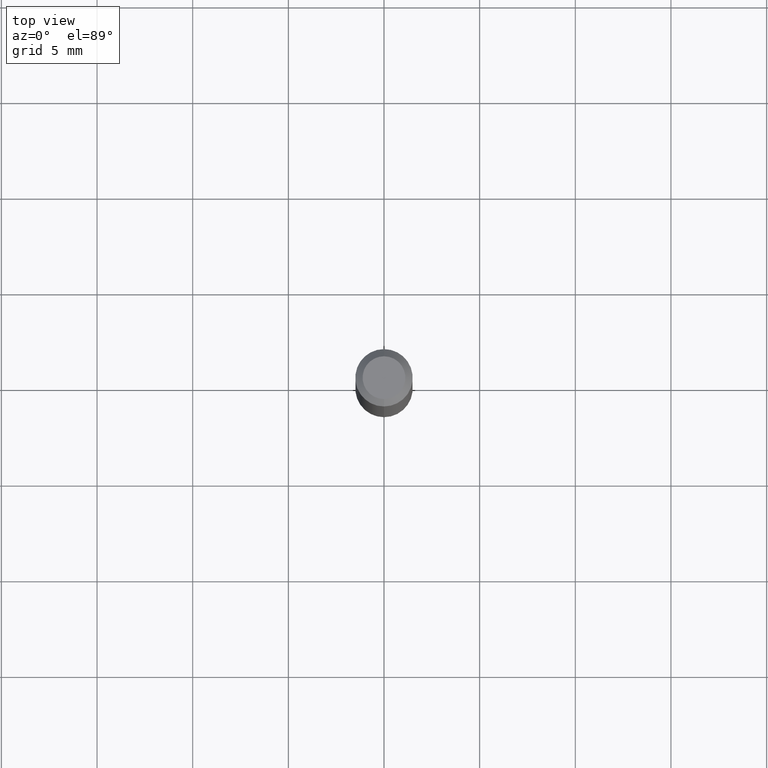
[diagram: clean part render]
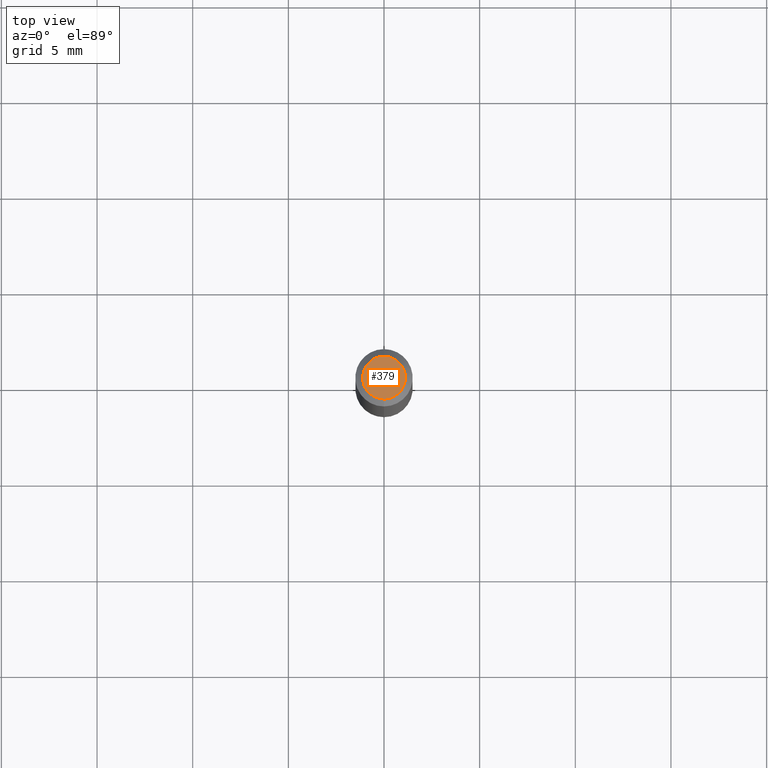
[diagram: same view with one face highlighted and labeled with its STEP entity id]
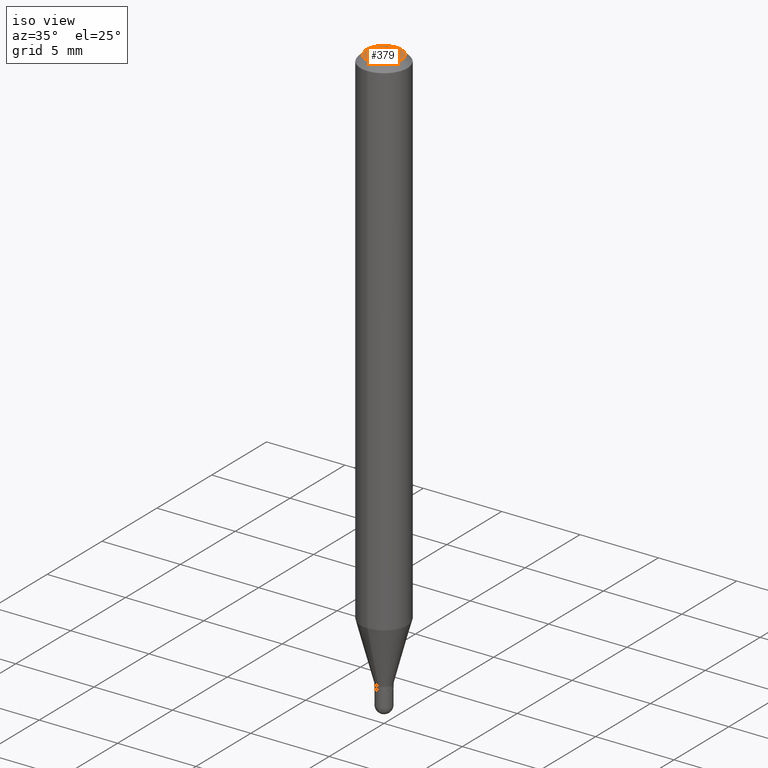
[diagram: same view with one face highlighted and labeled with its STEP entity id]
A machine part, top view. The second image highlights one B-rep face of the part: STEP entity #379.
A second angle (iso view) of the same face is appended — the face is thin or edge-on in the first view.
In plain terms, the highlighted planar face has unit normal (0, -0, -1).
Its self-contained STEP definition (entity closure, byte-faithful):
#33 = ORIENTED_EDGE ( 'NONE', *, *, #318, .T. ) ;
#62 = CARTESIAN_POINT ( 'NONE',  ( 3.075995059520799729E-16, 0.04404999999999999888, -1.657310279668033086E-16 ) ) ;
#75 = VERTEX_POINT ( 'NONE', #231 ) ;
#87 = DIRECTION ( 'NONE',  ( -2.445463937924498510E-29, 3.491488310469463520E-15, 1.000000000000000000 ) ) ;
#159 = CIRCLE ( 'NONE', #223, 0.04404999999999999888 ) ;
#171 = CARTESIAN_POINT ( 'NONE',  ( -3.536586717851222218E-16, -0.04404999999999999888, 1.299381242949329746E-16 ) ) ;
#172 = CARTESIAN_POINT ( 'NONE',  ( 5.835350344210947069E-46, -8.331366984539649306E-32, -2.386193578124687290E-17 ) ) ;
#193 = AXIS2_PLACEMENT_3D ( 'NONE', #62, #423, #307 ) ;
#223 = AXIS2_PLACEMENT_3D ( 'NONE', #172, #285, #253 ) ;
#231 = CARTESIAN_POINT ( 'NONE',  ( 3.599717260347271507E-16, 0.04404999999999999888, -1.776619958574267204E-16 ) ) ;
#253 = DIRECTION ( 'NONE',  ( -6.982962677686265133E-15, -1.000000000000000000, 3.491488310469463125E-15 ) ) ;
#260 = DIRECTION ( 'NONE',  ( -6.982962677686265133E-15, -1.000000000000000000, 3.491488310469463125E-15 ) ) ;
#285 = DIRECTION ( 'NONE',  ( -2.445463937924498510E-29, 3.491488310469463520E-15, 1.000000000000000000 ) ) ;
#296 = CIRCLE ( 'NONE', #359, 0.04404999999999999888 ) ;
#302 = FACE_OUTER_BOUND ( 'NONE', #432, .T. ) ;
#307 = DIRECTION ( 'NONE',  ( 6.982962677686265922E-15, 1.000000000000000000, -3.491488310469463914E-15 ) ) ;
#318 = EDGE_CURVE ( 'NONE', #505, #75, #159, .T. ) ;
#329 = EDGE_CURVE ( 'NONE', #75, #505, #296, .T. ) ;
#359 = AXIS2_PLACEMENT_3D ( 'NONE', #369, #87, #260 ) ;
#361 = ORIENTED_EDGE ( 'NONE', *, *, #329, .T. ) ;
#369 = CARTESIAN_POINT ( 'NONE',  ( 5.835350344210947069E-46, -8.331366984539649306E-32, -2.386193578124687290E-17 ) ) ;
#379 = ADVANCED_FACE ( 'NONE', ( #302 ), #380, .F. ) ;
#380 = PLANE ( 'NONE',  #193 ) ;
#423 = DIRECTION ( 'NONE',  ( 2.445463937924497950E-29, -3.491488310469463914E-15, -1.000000000000000000 ) ) ;
#432 = EDGE_LOOP ( 'NONE', ( #361, #33 ) ) ;
#505 = VERTEX_POINT ( 'NONE', #171 ) ;